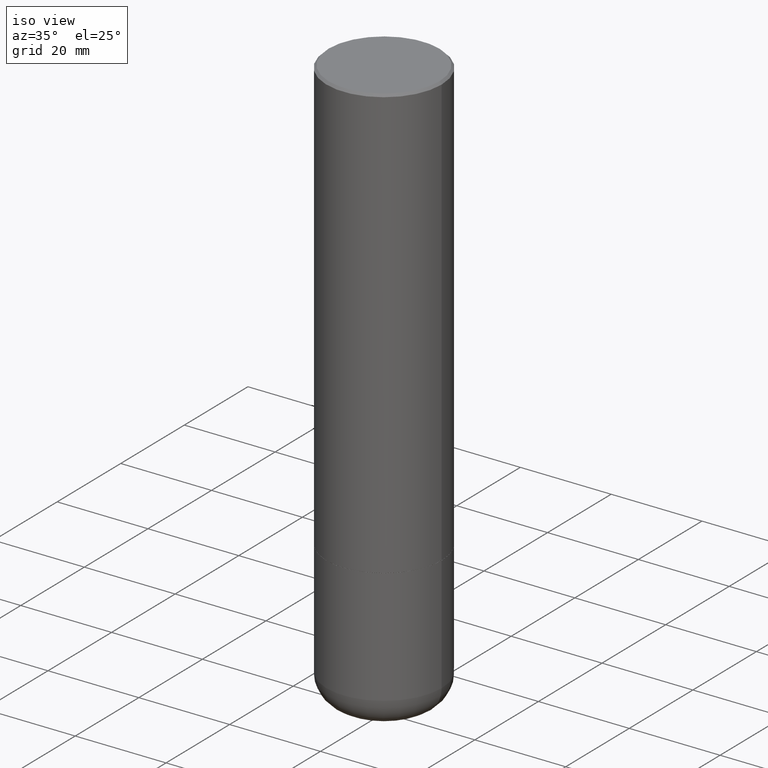
[diagram: clean part render]
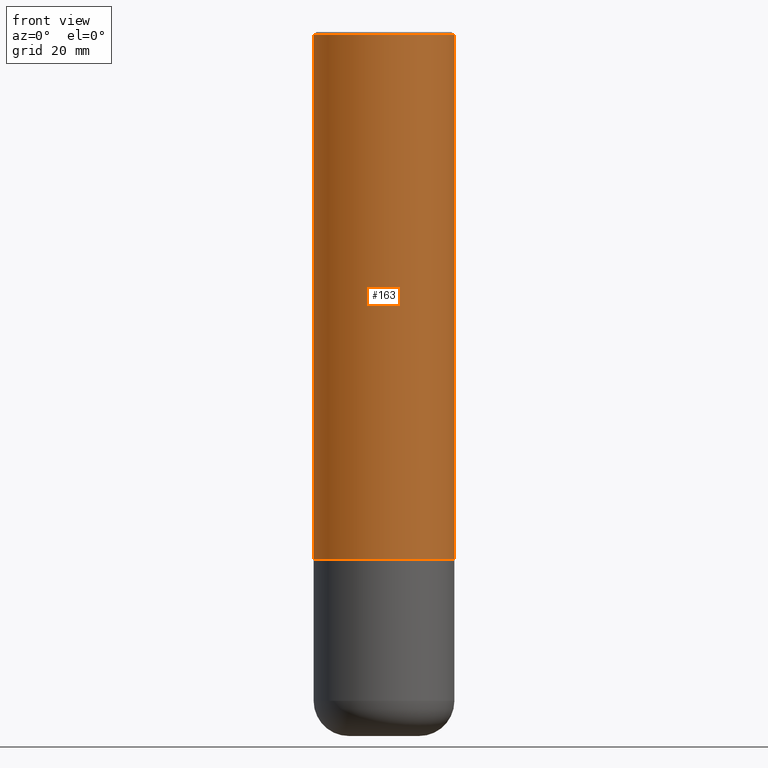
[diagram: tour spotlight — one face highlighted and labeled with its STEP entity id]
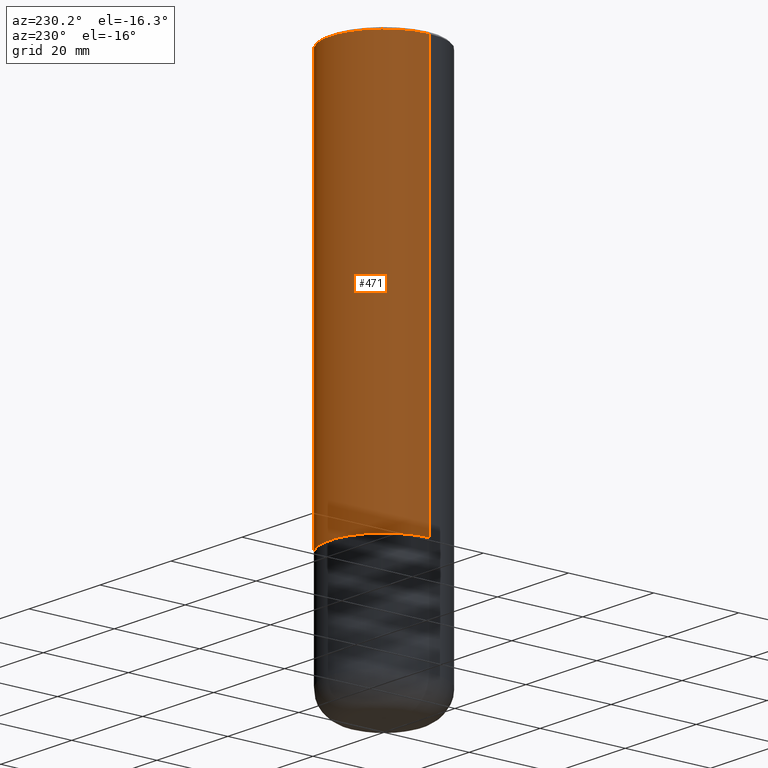
[diagram: tour spotlight — one face highlighted and labeled with its STEP entity id]
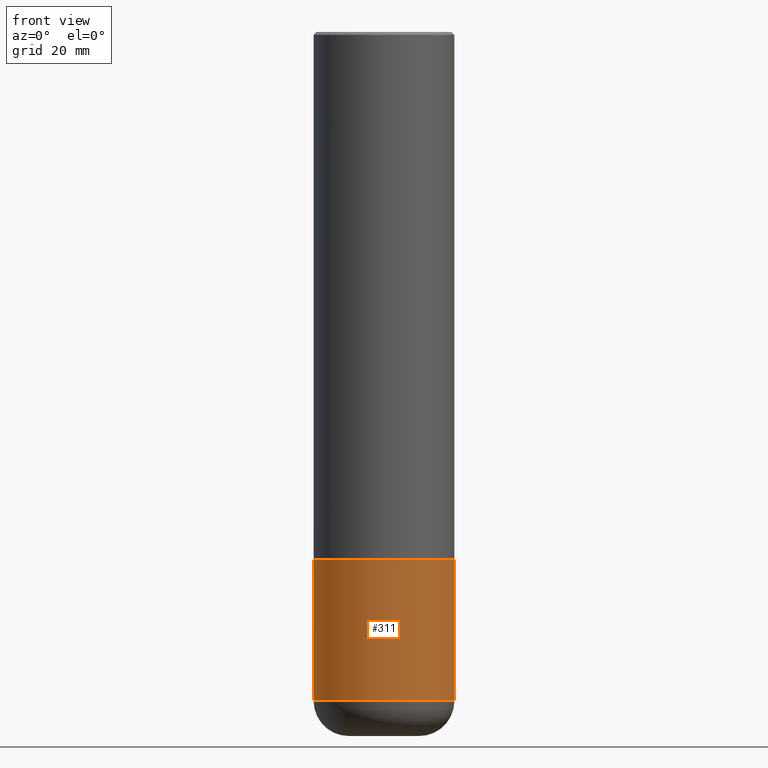
[diagram: tour spotlight — one face highlighted and labeled with its STEP entity id]
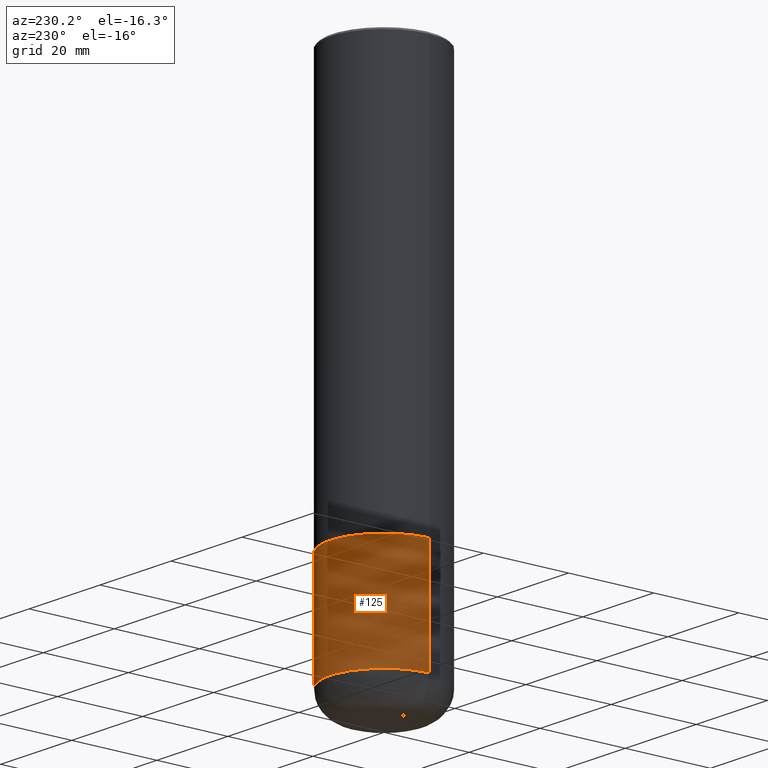
[diagram: tour spotlight — one face highlighted and labeled with its STEP entity id]
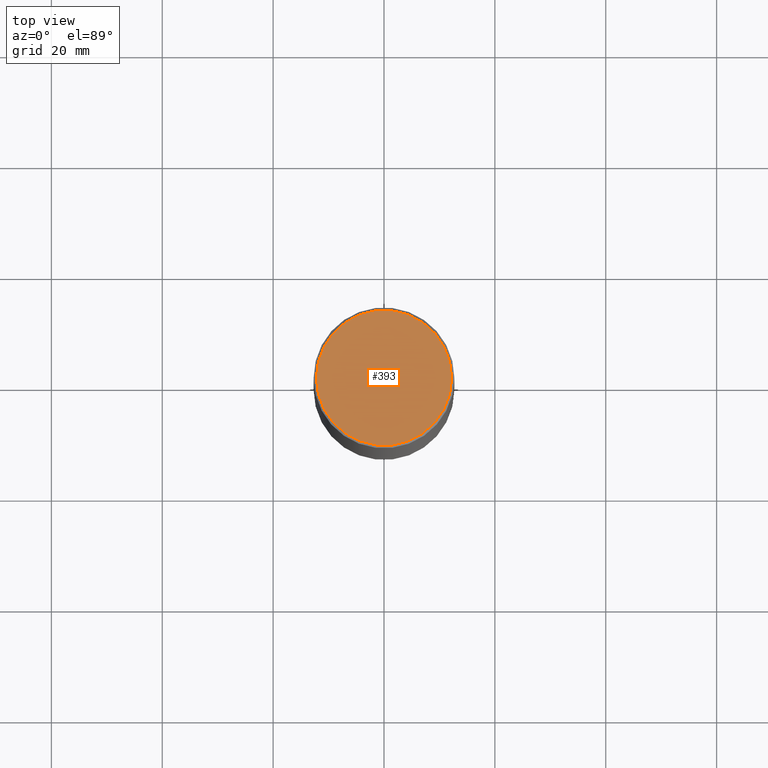
[diagram: tour spotlight — one face highlighted and labeled with its STEP entity id]
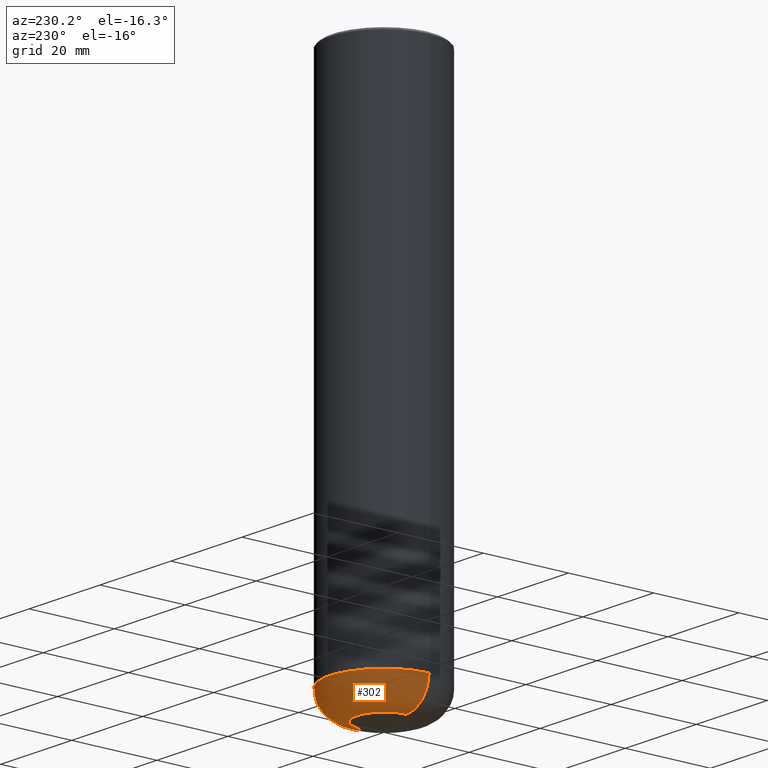
[diagram: tour spotlight — one face highlighted and labeled with its STEP entity id]
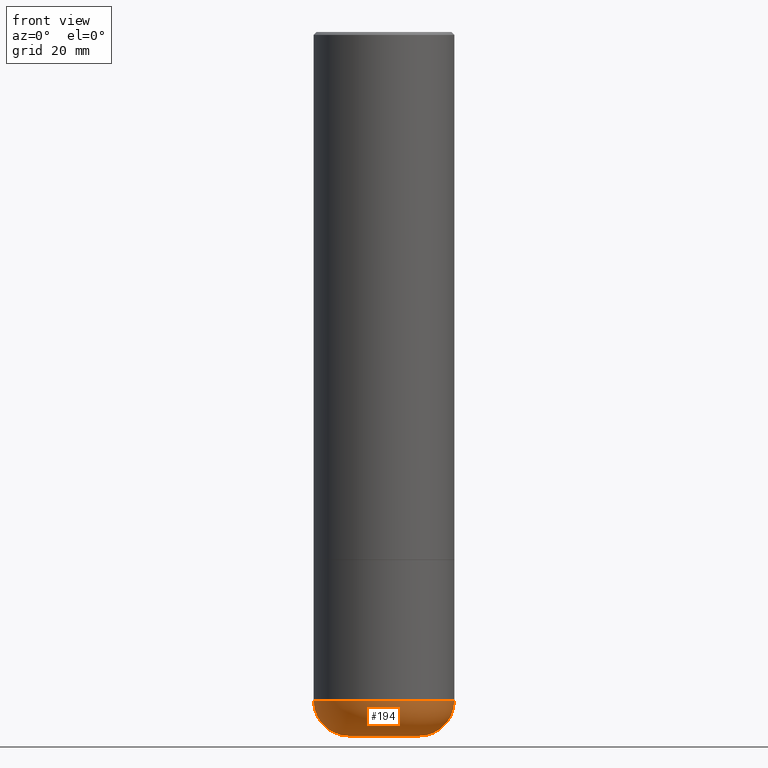
[diagram: tour spotlight — one face highlighted and labeled with its STEP entity id]
A machine part: a face-by-face anatomy tour. The part has 17 B-rep faces; the first image is the clean iso view, then the 7 largest visible faces are spotlighted one at a time (largest first), each with its STEP entity span.

Face 1 — front view, entity #163. In plain terms, the highlighted cylindrical surface (partial cylindrical patch) has radius 12.7 mm, axis along (-0, 0, 1).
Definition (entity closure, byte-faithful):
#12 = DIRECTION ( 'NONE',  ( 1.000000000000000000, -6.982962677686266711E-15, 0.000000000000000000 ) ) ;
#22 = AXIS2_PLACEMENT_3D ( 'NONE', #228, #447, #261 ) ;
#28 = CARTESIAN_POINT ( 'NONE',  ( -0.4999999999999990563, 3.421651712066263352E-15, -0.02000000000000018777 ) ) ;
#52 = CIRCLE ( 'NONE', #178, 0.4999999999999990563 ) ;
#57 = VERTEX_POINT ( 'NONE', #466 ) ;
#65 = EDGE_CURVE ( 'NONE', #491, #279, #52, .T. ) ;
#80 = ORIENTED_EDGE ( 'NONE', *, *, #86, .T. ) ;
#86 = EDGE_CURVE ( 'NONE', #225, #57, #151, .T. ) ;
#107 = EDGE_LOOP ( 'NONE', ( #258, #80, #219, #405 ) ) ;
#126 = DIRECTION ( 'NONE',  ( 1.000000000000000000, -6.982962677686267499E-15, 4.876176775795935793E-29 ) ) ;
#128 = CARTESIAN_POINT ( 'NONE',  ( -0.4999999999999992228, 3.552713678800495407E-15, -2.459467545127449248E-29 ) ) ;
#151 = CIRCLE ( 'NONE', #22, 0.4999999999999994449 ) ;
#163 = ADVANCED_FACE ( 'NONE', ( #164 ), #419, .T. ) ;
#164 = FACE_OUTER_BOUND ( 'NONE', #107, .T. ) ;
#178 = AXIS2_PLACEMENT_3D ( 'NONE', #472, #287, #12 ) ;
#206 = EDGE_CURVE ( 'NONE', #57, #279, #458, .T. ) ;
#207 = DIRECTION ( 'NONE',  ( -2.445468806185136877E-29, 3.491481338843145188E-15, 1.000000000000000000 ) ) ;
#219 = ORIENTED_EDGE ( 'NONE', *, *, #206, .T. ) ;
#225 = VERTEX_POINT ( 'NONE', #272 ) ;
#228 = CARTESIAN_POINT ( 'NONE',  ( 9.168062554388078877E-29, -1.308956353932295441E-14, -3.749000000000000554 ) ) ;
#229 = DIRECTION ( 'NONE',  ( -2.445468806185136877E-29, 3.491481338843145188E-15, 1.000000000000000000 ) ) ;
#258 = ORIENTED_EDGE ( 'NONE', *, *, #259, .F. ) ;
#259 = EDGE_CURVE ( 'NONE', #225, #491, #453, .T. ) ;
#261 = DIRECTION ( 'NONE',  ( 1.000000000000000000, -6.982962677686266711E-15, 0.000000000000000000 ) ) ;
#272 = CARTESIAN_POINT ( 'NONE',  ( -0.4999999999999994449, -3.026982904249409106E-15, -3.749000000000000554 ) ) ;
#279 = VERTEX_POINT ( 'NONE', #411 ) ;
#283 = VECTOR ( 'NONE', #229, 39.37007874015748143 ) ;
#287 = DIRECTION ( 'NONE',  ( -2.445468806185136597E-29, 3.491481338843145583E-15, 1.000000000000000000 ) ) ;
#323 = AXIS2_PLACEMENT_3D ( 'NONE', #461, #376, #126 ) ;
#366 = VECTOR ( 'NONE', #207, 39.37007874015748143 ) ;
#376 = DIRECTION ( 'NONE',  ( -2.445468806185136597E-29, 3.491481338843145583E-15, 1.000000000000000000 ) ) ;
#405 = ORIENTED_EDGE ( 'NONE', *, *, #65, .F. ) ;
#411 = CARTESIAN_POINT ( 'NONE',  ( 0.4999999999999990563, -3.500078625662622374E-15, -0.02000000000000018777 ) ) ;
#414 = CARTESIAN_POINT ( 'NONE',  ( 0.4999999999999992228, -3.491481338843128228E-15, 2.438088387897963973E-29 ) ) ;
#419 = CYLINDRICAL_SURFACE ( 'NONE', #323, 0.4999999999999992228 ) ;
#447 = DIRECTION ( 'NONE',  ( -2.445468806185136597E-29, 3.491481338843145583E-15, 1.000000000000000000 ) ) ;
#453 = LINE ( 'NONE', #128, #283 ) ;
#458 = LINE ( 'NONE', #414, #366 ) ;
#461 = CARTESIAN_POINT ( 'NONE',  ( 0.000000000000000000, 0.000000000000000000, 0.000000000000000000 ) ) ;
#466 = CARTESIAN_POINT ( 'NONE',  ( 0.4999999999999994449, -1.658104487816608303E-14, -3.749000000000000554 ) ) ;
#472 = CARTESIAN_POINT ( 'NONE',  ( 4.890937612370318701E-31, -6.982962677686356937E-17, -0.02000000000000018777 ) ) ;
#491 = VERTEX_POINT ( 'NONE', #28 ) ;

Face 2 — auxiliary view, entity #471. In plain terms, the highlighted cylindrical surface (partial cylindrical patch) has radius 12.7 mm, axis along (-0, 0, 1).
Definition (entity closure, byte-faithful):
#2 = EDGE_LOOP ( 'NONE', ( #321, #64, #292, #332 ) ) ;
#13 = AXIS2_PLACEMENT_3D ( 'NONE', #240, #308, #492 ) ;
#28 = CARTESIAN_POINT ( 'NONE',  ( -0.4999999999999990563, 3.421651712066263352E-15, -0.02000000000000018777 ) ) ;
#36 = DIRECTION ( 'NONE',  ( 1.000000000000000000, -6.982962677686267499E-15, 4.876176775795935793E-29 ) ) ;
#43 = AXIS2_PLACEMENT_3D ( 'NONE', #469, #428, #288 ) ;
#57 = VERTEX_POINT ( 'NONE', #466 ) ;
#64 = ORIENTED_EDGE ( 'NONE', *, *, #259, .T. ) ;
#128 = CARTESIAN_POINT ( 'NONE',  ( -0.4999999999999992228, 3.552713678800495407E-15, -2.459467545127449248E-29 ) ) ;
#162 = CIRCLE ( 'NONE', #43, 0.4999999999999994449 ) ;
#172 = CIRCLE ( 'NONE', #13, 0.4999999999999990563 ) ;
#206 = EDGE_CURVE ( 'NONE', #57, #279, #458, .T. ) ;
#207 = DIRECTION ( 'NONE',  ( -2.445468806185136877E-29, 3.491481338843145188E-15, 1.000000000000000000 ) ) ;
#211 = EDGE_CURVE ( 'NONE', #279, #491, #172, .T. ) ;
#225 = VERTEX_POINT ( 'NONE', #272 ) ;
#229 = DIRECTION ( 'NONE',  ( -2.445468806185136877E-29, 3.491481338843145188E-15, 1.000000000000000000 ) ) ;
#240 = CARTESIAN_POINT ( 'NONE',  ( 4.890937612370318701E-31, -6.982962677686356937E-17, -0.02000000000000018777 ) ) ;
#259 = EDGE_CURVE ( 'NONE', #225, #491, #453, .T. ) ;
#269 = DIRECTION ( 'NONE',  ( -2.445468806185136597E-29, 3.491481338843145583E-15, 1.000000000000000000 ) ) ;
#272 = CARTESIAN_POINT ( 'NONE',  ( -0.4999999999999994449, -3.026982904249409106E-15, -3.749000000000000554 ) ) ;
#279 = VERTEX_POINT ( 'NONE', #411 ) ;
#283 = VECTOR ( 'NONE', #229, 39.37007874015748143 ) ;
#288 = DIRECTION ( 'NONE',  ( 1.000000000000000000, -6.982962677686266711E-15, 0.000000000000000000 ) ) ;
#292 = ORIENTED_EDGE ( 'NONE', *, *, #211, .F. ) ;
#308 = DIRECTION ( 'NONE',  ( -2.445468806185136597E-29, 3.491481338843145583E-15, 1.000000000000000000 ) ) ;
#321 = ORIENTED_EDGE ( 'NONE', *, *, #402, .T. ) ;
#332 = ORIENTED_EDGE ( 'NONE', *, *, #206, .F. ) ;
#347 = AXIS2_PLACEMENT_3D ( 'NONE', #348, #269, #36 ) ;
#348 = CARTESIAN_POINT ( 'NONE',  ( 0.000000000000000000, 0.000000000000000000, 0.000000000000000000 ) ) ;
#366 = VECTOR ( 'NONE', #207, 39.37007874015748143 ) ;
#402 = EDGE_CURVE ( 'NONE', #57, #225, #162, .T. ) ;
#411 = CARTESIAN_POINT ( 'NONE',  ( 0.4999999999999990563, -3.500078625662622374E-15, -0.02000000000000018777 ) ) ;
#414 = CARTESIAN_POINT ( 'NONE',  ( 0.4999999999999992228, -3.491481338843128228E-15, 2.438088387897963973E-29 ) ) ;
#416 = CYLINDRICAL_SURFACE ( 'NONE', #347, 0.4999999999999992228 ) ;
#428 = DIRECTION ( 'NONE',  ( -2.445468806185136597E-29, 3.491481338843145583E-15, 1.000000000000000000 ) ) ;
#453 = LINE ( 'NONE', #128, #283 ) ;
#458 = LINE ( 'NONE', #414, #366 ) ;
#466 = CARTESIAN_POINT ( 'NONE',  ( 0.4999999999999994449, -1.658104487816608303E-14, -3.749000000000000554 ) ) ;
#469 = CARTESIAN_POINT ( 'NONE',  ( 9.168062554388078877E-29, -1.308956353932295441E-14, -3.749000000000000554 ) ) ;
#471 = ADVANCED_FACE ( 'NONE', ( #488 ), #416, .T. ) ;
#488 = FACE_OUTER_BOUND ( 'NONE', #2, .T. ) ;
#491 = VERTEX_POINT ( 'NONE', #28 ) ;
#492 = DIRECTION ( 'NONE',  ( 1.000000000000000000, -6.982962677686266711E-15, 0.000000000000000000 ) ) ;

Face 3 — front view, entity #311. In plain terms, the highlighted cylindrical surface (partial cylindrical patch) has radius 12.7 mm, axis along (-0, 0, 1).
Definition (entity closure, byte-faithful):
#1 = DIRECTION ( 'NONE',  ( -2.445468806185136597E-29, 3.491481338843145583E-15, 1.000000000000000000 ) ) ;
#11 = EDGE_CURVE ( 'NONE', #255, #247, #21, .T. ) ;
#20 = VECTOR ( 'NONE', #231, 39.37007874015748143 ) ;
#21 = CIRCLE ( 'NONE', #327, 0.4999999999999994449 ) ;
#37 = CARTESIAN_POINT ( 'NONE',  ( -0.4999999999999999445, -1.128609862939673003E-14, -4.750009519233957533 ) ) ;
#40 = CARTESIAN_POINT ( 'NONE',  ( 0.5000000000000000000, -2.007605093457579787E-14, -4.750009519233957533 ) ) ;
#42 = CARTESIAN_POINT ( 'NONE',  ( 1.161600010836909978E-28, -1.658456959573266451E-14, -4.750009519233957533 ) ) ;
#50 = LINE ( 'NONE', #116, #20 ) ;
#73 = CARTESIAN_POINT ( 'NONE',  ( 0.4999999999999997224, -3.491481338843131383E-15, 2.438088387897966495E-29 ) ) ;
#79 = FACE_OUTER_BOUND ( 'NONE', #139, .T. ) ;
#87 = DIRECTION ( 'NONE',  ( 1.000000000000000000, -6.982962677686266711E-15, 0.000000000000000000 ) ) ;
#92 = CARTESIAN_POINT ( 'NONE',  ( 0.000000000000000000, 0.000000000000000000, 0.000000000000000000 ) ) ;
#99 = DIRECTION ( 'NONE',  ( 1.000000000000000000, -6.982962677686266711E-15, 0.000000000000000000 ) ) ;
#113 = DIRECTION ( 'NONE',  ( -2.445468806185136877E-29, 3.491481338843145188E-15, 1.000000000000000000 ) ) ;
#116 = CARTESIAN_POINT ( 'NONE',  ( -0.4999999999999997224, 3.552713678800498957E-15, -2.459467545127451490E-29 ) ) ;
#139 = EDGE_LOOP ( 'NONE', ( #299, #295, #142, #328 ) ) ;
#142 = ORIENTED_EDGE ( 'NONE', *, *, #253, .T. ) ;
#155 = CARTESIAN_POINT ( 'NONE',  ( -0.4999999999999994449, -1.128609862939673161E-14, -3.750000000000000000 ) ) ;
#166 = DIRECTION ( 'NONE',  ( -2.445468806185136597E-29, 3.491481338843145583E-15, 1.000000000000000000 ) ) ;
#177 = EDGE_CURVE ( 'NONE', #289, #255, #50, .T. ) ;
#231 = DIRECTION ( 'NONE',  ( -2.445468806185136877E-29, 3.491481338843145188E-15, 1.000000000000000000 ) ) ;
#237 = AXIS2_PLACEMENT_3D ( 'NONE', #42, #166, #87 ) ;
#247 = VERTEX_POINT ( 'NONE', #389 ) ;
#252 = AXIS2_PLACEMENT_3D ( 'NONE', #92, #1, #354 ) ;
#253 = EDGE_CURVE ( 'NONE', #439, #247, #275, .T. ) ;
#255 = VERTEX_POINT ( 'NONE', #155 ) ;
#275 = LINE ( 'NONE', #73, #481 ) ;
#289 = VERTEX_POINT ( 'NONE', #37 ) ;
#295 = ORIENTED_EDGE ( 'NONE', *, *, #382, .T. ) ;
#298 = CYLINDRICAL_SURFACE ( 'NONE', #252, 0.4999999999999997224 ) ;
#299 = ORIENTED_EDGE ( 'NONE', *, *, #177, .F. ) ;
#311 = ADVANCED_FACE ( 'NONE', ( #79 ), #298, .T. ) ;
#327 = AXIS2_PLACEMENT_3D ( 'NONE', #390, #464, #99 ) ;
#328 = ORIENTED_EDGE ( 'NONE', *, *, #11, .F. ) ;
#354 = DIRECTION ( 'NONE',  ( 1.000000000000000000, -6.982962677686266711E-15, 4.876176775795935793E-29 ) ) ;
#382 = EDGE_CURVE ( 'NONE', #289, #439, #425, .T. ) ;
#389 = CARTESIAN_POINT ( 'NONE',  ( 0.4999999999999994449, -1.658453635950492761E-14, -3.750000000000000000 ) ) ;
#390 = CARTESIAN_POINT ( 'NONE',  ( 9.170508023194262238E-29, -1.309305502066179741E-14, -3.750000000000000000 ) ) ;
#425 = CIRCLE ( 'NONE', #237, 0.5000000000000000000 ) ;
#439 = VERTEX_POINT ( 'NONE', #40 ) ;
#464 = DIRECTION ( 'NONE',  ( -2.445468806185136597E-29, 3.491481338843145583E-15, 1.000000000000000000 ) ) ;
#481 = VECTOR ( 'NONE', #113, 39.37007874015748143 ) ;

Face 4 — auxiliary view, entity #125. In plain terms, the highlighted cylindrical surface (partial cylindrical patch) has radius 12.7 mm, axis along (-0, 0, 1).
Definition (entity closure, byte-faithful):
#20 = VECTOR ( 'NONE', #231, 39.37007874015748143 ) ;
#26 = ORIENTED_EDGE ( 'NONE', *, *, #177, .T. ) ;
#35 = DIRECTION ( 'NONE',  ( -2.445468806185136597E-29, 3.491481338843145583E-15, 1.000000000000000000 ) ) ;
#37 = CARTESIAN_POINT ( 'NONE',  ( -0.4999999999999999445, -1.128609862939673003E-14, -4.750009519233957533 ) ) ;
#40 = CARTESIAN_POINT ( 'NONE',  ( 0.5000000000000000000, -2.007605093457579787E-14, -4.750009519233957533 ) ) ;
#50 = LINE ( 'NONE', #116, #20 ) ;
#73 = CARTESIAN_POINT ( 'NONE',  ( 0.4999999999999997224, -3.491481338843131383E-15, 2.438088387897966495E-29 ) ) ;
#82 = CYLINDRICAL_SURFACE ( 'NONE', #358, 0.4999999999999997224 ) ;
#98 = ORIENTED_EDGE ( 'NONE', *, *, #180, .T. ) ;
#113 = DIRECTION ( 'NONE',  ( -2.445468806185136877E-29, 3.491481338843145188E-15, 1.000000000000000000 ) ) ;
#116 = CARTESIAN_POINT ( 'NONE',  ( -0.4999999999999997224, 3.552713678800498957E-15, -2.459467545127451490E-29 ) ) ;
#125 = ADVANCED_FACE ( 'NONE', ( #193 ), #82, .T. ) ;
#127 = DIRECTION ( 'NONE',  ( 1.000000000000000000, -6.982962677686266711E-15, 0.000000000000000000 ) ) ;
#134 = CIRCLE ( 'NONE', #436, 0.5000000000000000000 ) ;
#137 = CARTESIAN_POINT ( 'NONE',  ( 1.161600010836909978E-28, -1.658456959573266451E-14, -4.750009519233957533 ) ) ;
#141 = AXIS2_PLACEMENT_3D ( 'NONE', #455, #420, #127 ) ;
#155 = CARTESIAN_POINT ( 'NONE',  ( -0.4999999999999994449, -1.128609862939673161E-14, -3.750000000000000000 ) ) ;
#157 = DIRECTION ( 'NONE',  ( -2.445468806185136597E-29, 3.491481338843145583E-15, 1.000000000000000000 ) ) ;
#159 = EDGE_LOOP ( 'NONE', ( #98, #26, #399, #435 ) ) ;
#177 = EDGE_CURVE ( 'NONE', #289, #255, #50, .T. ) ;
#180 = EDGE_CURVE ( 'NONE', #439, #289, #134, .T. ) ;
#193 = FACE_OUTER_BOUND ( 'NONE', #159, .T. ) ;
#231 = DIRECTION ( 'NONE',  ( -2.445468806185136877E-29, 3.491481338843145188E-15, 1.000000000000000000 ) ) ;
#247 = VERTEX_POINT ( 'NONE', #389 ) ;
#253 = EDGE_CURVE ( 'NONE', #439, #247, #275, .T. ) ;
#255 = VERTEX_POINT ( 'NONE', #155 ) ;
#275 = LINE ( 'NONE', #73, #481 ) ;
#278 = DIRECTION ( 'NONE',  ( 1.000000000000000000, -6.982962677686266711E-15, 0.000000000000000000 ) ) ;
#289 = VERTEX_POINT ( 'NONE', #37 ) ;
#317 = CIRCLE ( 'NONE', #141, 0.4999999999999994449 ) ;
#358 = AXIS2_PLACEMENT_3D ( 'NONE', #454, #157, #427 ) ;
#389 = CARTESIAN_POINT ( 'NONE',  ( 0.4999999999999994449, -1.658453635950492761E-14, -3.750000000000000000 ) ) ;
#399 = ORIENTED_EDGE ( 'NONE', *, *, #480, .F. ) ;
#420 = DIRECTION ( 'NONE',  ( -2.445468806185136597E-29, 3.491481338843145583E-15, 1.000000000000000000 ) ) ;
#427 = DIRECTION ( 'NONE',  ( 1.000000000000000000, -6.982962677686266711E-15, 4.876176775795935793E-29 ) ) ;
#435 = ORIENTED_EDGE ( 'NONE', *, *, #253, .F. ) ;
#436 = AXIS2_PLACEMENT_3D ( 'NONE', #137, #35, #278 ) ;
#439 = VERTEX_POINT ( 'NONE', #40 ) ;
#454 = CARTESIAN_POINT ( 'NONE',  ( 0.000000000000000000, 0.000000000000000000, 0.000000000000000000 ) ) ;
#455 = CARTESIAN_POINT ( 'NONE',  ( 9.170508023194262238E-29, -1.309305502066179741E-14, -3.750000000000000000 ) ) ;
#480 = EDGE_CURVE ( 'NONE', #247, #255, #317, .T. ) ;
#481 = VECTOR ( 'NONE', #113, 39.37007874015748143 ) ;

Face 5 — top view, entity #393. In plain terms, the highlighted planar face has unit normal (0, -0, -1).
Definition (entity closure, byte-faithful):
#8 = CARTESIAN_POINT ( 'NONE',  ( -0.4799999999999989275, 3.386736898677831703E-15, 1.280553747027767124E-17 ) ) ;
#30 = AXIS2_PLACEMENT_3D ( 'NONE', #307, #204, #388 ) ;
#49 = CARTESIAN_POINT ( 'NONE',  ( 3.351822085289400054E-15, 0.4799999999999989275, -1.669508273909555500E-15 ) ) ;
#75 = AXIS2_PLACEMENT_3D ( 'NONE', #49, #448, #236 ) ;
#89 = AXIS2_PLACEMENT_3D ( 'NONE', #306, #198, #444 ) ;
#192 = VERTEX_POINT ( 'NONE', #380 ) ;
#198 = DIRECTION ( 'NONE',  ( -2.445468806185136597E-29, 3.491481338843145583E-15, 1.000000000000000000 ) ) ;
#204 = DIRECTION ( 'NONE',  ( -2.445468806185136597E-29, 3.491481338843145583E-15, 1.000000000000000000 ) ) ;
#236 = DIRECTION ( 'NONE',  ( -1.000000000000000000, 6.982962677686265922E-15, -4.876176775795935793E-29 ) ) ;
#263 = CIRCLE ( 'NONE', #89, 0.4799999999999989275 ) ;
#301 = PLANE ( 'NONE',  #75 ) ;
#303 = VERTEX_POINT ( 'NONE', #8 ) ;
#306 = CARTESIAN_POINT ( 'NONE',  ( -3.131554243005659264E-46, 4.471029511141341874E-32, 1.280553747030123384E-17 ) ) ;
#307 = CARTESIAN_POINT ( 'NONE',  ( -3.131554243005659264E-46, 4.471029511141341874E-32, 1.280553747030123384E-17 ) ) ;
#326 = EDGE_CURVE ( 'NONE', #303, #192, #460, .T. ) ;
#333 = ORIENTED_EDGE ( 'NONE', *, *, #465, .T. ) ;
#368 = EDGE_LOOP ( 'NONE', ( #442, #333 ) ) ;
#380 = CARTESIAN_POINT ( 'NONE',  ( 0.4799999999999989275, -3.396558832296475394E-15, 1.280553747032483033E-17 ) ) ;
#388 = DIRECTION ( 'NONE',  ( 1.000000000000000000, -6.982962677686266711E-15, 4.876036955247140054E-29 ) ) ;
#393 = ADVANCED_FACE ( 'NONE', ( #404 ), #301, .F. ) ;
#404 = FACE_OUTER_BOUND ( 'NONE', #368, .T. ) ;
#442 = ORIENTED_EDGE ( 'NONE', *, *, #326, .T. ) ;
#444 = DIRECTION ( 'NONE',  ( 1.000000000000000000, -6.982962677686266711E-15, 4.876036955247140054E-29 ) ) ;
#448 = DIRECTION ( 'NONE',  ( 2.438088387897960049E-29, -3.491481338843145188E-15, -1.000000000000000000 ) ) ;
#460 = CIRCLE ( 'NONE', #30, 0.4799999999999989275 ) ;
#465 = EDGE_CURVE ( 'NONE', #192, #303, #263, .T. ) ;

Face 6 — auxiliary view, entity #302. In plain terms, the highlighted toroidal blend (fillet) surface has major radius 6.35 mm and minor (blend) radius 6.35 mm.
Definition (entity closure, byte-faithful):
#17 = DIRECTION ( 'NONE',  ( -6.982962677686266711E-15, -1.000000000000000000, 3.491481338843145583E-15 ) ) ;
#18 = EDGE_CURVE ( 'NONE', #361, #439, #96, .T. ) ;
#29 = AXIS2_PLACEMENT_3D ( 'NONE', #174, #17, #432 ) ;
#35 = DIRECTION ( 'NONE',  ( -2.445468806185136597E-29, 3.491481338843145583E-15, 1.000000000000000000 ) ) ;
#37 = CARTESIAN_POINT ( 'NONE',  ( -0.4999999999999999445, -1.128609862939673003E-14, -4.750009519233957533 ) ) ;
#40 = CARTESIAN_POINT ( 'NONE',  ( 0.5000000000000000000, -2.007605093457579787E-14, -4.750009519233957533 ) ) ;
#62 = EDGE_CURVE ( 'NONE', #245, #289, #117, .T. ) ;
#95 = ORIENTED_EDGE ( 'NONE', *, *, #62, .T. ) ;
#96 = CIRCLE ( 'NONE', #29, 0.2499999999999998612 ) ;
#100 = DIRECTION ( 'NONE',  ( 7.105427357601001859E-15, 1.000000000000000000, -3.491481338843145583E-15 ) ) ;
#103 = AXIS2_PLACEMENT_3D ( 'NONE', #344, #383, #349 ) ;
#111 = ORIENTED_EDGE ( 'NONE', *, *, #180, .F. ) ;
#117 = CIRCLE ( 'NONE', #365, 0.2499999999999998612 ) ;
#134 = CIRCLE ( 'NONE', #436, 0.5000000000000000000 ) ;
#137 = CARTESIAN_POINT ( 'NONE',  ( 1.161600010836909978E-28, -1.658456959573266451E-14, -4.750009519233957533 ) ) ;
#146 = AXIS2_PLACEMENT_3D ( 'NONE', #224, #373, #161 ) ;
#161 = DIRECTION ( 'NONE',  ( 1.000000000000000000, -6.982962677686273021E-15, 0.000000000000000000 ) ) ;
#174 = CARTESIAN_POINT ( 'NONE',  ( 0.2500000000000002776, -1.833031026515423119E-14, -4.750009519233957533 ) ) ;
#180 = EDGE_CURVE ( 'NONE', #439, #289, #134, .T. ) ;
#181 = ORIENTED_EDGE ( 'NONE', *, *, #273, .T. ) ;
#183 = CIRCLE ( 'NONE', #146, 0.2478183661254080850 ) ;
#195 = FACE_OUTER_BOUND ( 'NONE', #446, .T. ) ;
#210 = CARTESIAN_POINT ( 'NONE',  ( -0.2500000000000002776, -1.480821275633241089E-14, -4.750009519233957533 ) ) ;
#212 = ORIENTED_EDGE ( 'NONE', *, *, #18, .F. ) ;
#224 = CARTESIAN_POINT ( 'NONE',  ( 1.222734403092568523E-28, -1.745740669421572989E-14, -5.000000000000000000 ) ) ;
#232 = CARTESIAN_POINT ( 'NONE',  ( 0.2478183661254080850, -1.918791309571464730E-14, -5.000000000000000000 ) ) ;
#242 = TOROIDAL_SURFACE ( 'NONE', #103, 0.2500000000000002776, 0.2499999999999998612 ) ;
#245 = VERTEX_POINT ( 'NONE', #424 ) ;
#273 = EDGE_CURVE ( 'NONE', #361, #245, #183, .T. ) ;
#278 = DIRECTION ( 'NONE',  ( 1.000000000000000000, -6.982962677686266711E-15, 0.000000000000000000 ) ) ;
#289 = VERTEX_POINT ( 'NONE', #37 ) ;
#302 = ADVANCED_FACE ( 'NONE', ( #195 ), #242, .T. ) ;
#344 = CARTESIAN_POINT ( 'NONE',  ( 1.161600010836909978E-28, -1.658456959573266451E-14, -4.750009519233957533 ) ) ;
#349 = DIRECTION ( 'NONE',  ( 1.000000000000000000, -6.982962677686265133E-15, 4.883557194083112340E-29 ) ) ;
#361 = VERTEX_POINT ( 'NONE', #232 ) ;
#365 = AXIS2_PLACEMENT_3D ( 'NONE', #210, #100, #463 ) ;
#373 = DIRECTION ( 'NONE',  ( -2.445468806185136597E-29, 3.491481338843145583E-15, 1.000000000000000000 ) ) ;
#383 = DIRECTION ( 'NONE',  ( -2.445468806185136597E-29, 3.491481338843145583E-15, 1.000000000000000000 ) ) ;
#424 = CARTESIAN_POINT ( 'NONE',  ( -0.2478183661254081127, -1.436420360638221795E-14, -5.000000000000000000 ) ) ;
#432 = DIRECTION ( 'NONE',  ( 1.000000000000000000, -6.982962677686266711E-15, 0.000000000000000000 ) ) ;
#436 = AXIS2_PLACEMENT_3D ( 'NONE', #137, #35, #278 ) ;
#439 = VERTEX_POINT ( 'NONE', #40 ) ;
#446 = EDGE_LOOP ( 'NONE', ( #181, #95, #111, #212 ) ) ;
#463 = DIRECTION ( 'NONE',  ( -1.000000000000000000, 7.105427357601000281E-15, 0.000000000000000000 ) ) ;

Face 7 — front view, entity #194. In plain terms, the highlighted toroidal blend (fillet) surface has major radius 6.35 mm and minor (blend) radius 6.35 mm.
Definition (entity closure, byte-faithful):
#4 = AXIS2_PLACEMENT_3D ( 'NONE', #77, #452, #122 ) ;
#7 = CARTESIAN_POINT ( 'NONE',  ( 1.222734403092568523E-28, -1.745740669421572989E-14, -5.000000000000000000 ) ) ;
#17 = DIRECTION ( 'NONE',  ( -6.982962677686266711E-15, -1.000000000000000000, 3.491481338843145583E-15 ) ) ;
#18 = EDGE_CURVE ( 'NONE', #361, #439, #96, .T. ) ;
#19 = ORIENTED_EDGE ( 'NONE', *, *, #62, .F. ) ;
#29 = AXIS2_PLACEMENT_3D ( 'NONE', #174, #17, #432 ) ;
#37 = CARTESIAN_POINT ( 'NONE',  ( -0.4999999999999999445, -1.128609862939673003E-14, -4.750009519233957533 ) ) ;
#40 = CARTESIAN_POINT ( 'NONE',  ( 0.5000000000000000000, -2.007605093457579787E-14, -4.750009519233957533 ) ) ;
#42 = CARTESIAN_POINT ( 'NONE',  ( 1.161600010836909978E-28, -1.658456959573266451E-14, -4.750009519233957533 ) ) ;
#59 = AXIS2_PLACEMENT_3D ( 'NONE', #7, #353, #165 ) ;
#62 = EDGE_CURVE ( 'NONE', #245, #289, #117, .T. ) ;
#77 = CARTESIAN_POINT ( 'NONE',  ( 1.161600010836909978E-28, -1.658456959573266451E-14, -4.750009519233957533 ) ) ;
#87 = DIRECTION ( 'NONE',  ( 1.000000000000000000, -6.982962677686266711E-15, 0.000000000000000000 ) ) ;
#96 = CIRCLE ( 'NONE', #29, 0.2499999999999998612 ) ;
#100 = DIRECTION ( 'NONE',  ( 7.105427357601001859E-15, 1.000000000000000000, -3.491481338843145583E-15 ) ) ;
#117 = CIRCLE ( 'NONE', #365, 0.2499999999999998612 ) ;
#122 = DIRECTION ( 'NONE',  ( 1.000000000000000000, -6.982962677686265133E-15, 4.883557194083112340E-29 ) ) ;
#150 = ORIENTED_EDGE ( 'NONE', *, *, #474, .T. ) ;
#152 = EDGE_LOOP ( 'NONE', ( #19, #150, #184, #340 ) ) ;
#165 = DIRECTION ( 'NONE',  ( 1.000000000000000000, -6.982962677686273021E-15, 0.000000000000000000 ) ) ;
#166 = DIRECTION ( 'NONE',  ( -2.445468806185136597E-29, 3.491481338843145583E-15, 1.000000000000000000 ) ) ;
#174 = CARTESIAN_POINT ( 'NONE',  ( 0.2500000000000002776, -1.833031026515423119E-14, -4.750009519233957533 ) ) ;
#184 = ORIENTED_EDGE ( 'NONE', *, *, #18, .T. ) ;
#194 = ADVANCED_FACE ( 'NONE', ( #234 ), #398, .T. ) ;
#210 = CARTESIAN_POINT ( 'NONE',  ( -0.2500000000000002776, -1.480821275633241089E-14, -4.750009519233957533 ) ) ;
#232 = CARTESIAN_POINT ( 'NONE',  ( 0.2478183661254080850, -1.918791309571464730E-14, -5.000000000000000000 ) ) ;
#234 = FACE_OUTER_BOUND ( 'NONE', #152, .T. ) ;
#237 = AXIS2_PLACEMENT_3D ( 'NONE', #42, #166, #87 ) ;
#245 = VERTEX_POINT ( 'NONE', #424 ) ;
#289 = VERTEX_POINT ( 'NONE', #37 ) ;
#340 = ORIENTED_EDGE ( 'NONE', *, *, #382, .F. ) ;
#353 = DIRECTION ( 'NONE',  ( -2.445468806185136597E-29, 3.491481338843145583E-15, 1.000000000000000000 ) ) ;
#361 = VERTEX_POINT ( 'NONE', #232 ) ;
#365 = AXIS2_PLACEMENT_3D ( 'NONE', #210, #100, #463 ) ;
#371 = CIRCLE ( 'NONE', #59, 0.2478183661254080850 ) ;
#382 = EDGE_CURVE ( 'NONE', #289, #439, #425, .T. ) ;
#398 = TOROIDAL_SURFACE ( 'NONE', #4, 0.2500000000000002776, 0.2499999999999998612 ) ;
#424 = CARTESIAN_POINT ( 'NONE',  ( -0.2478183661254081127, -1.436420360638221795E-14, -5.000000000000000000 ) ) ;
#425 = CIRCLE ( 'NONE', #237, 0.5000000000000000000 ) ;
#432 = DIRECTION ( 'NONE',  ( 1.000000000000000000, -6.982962677686266711E-15, 0.000000000000000000 ) ) ;
#439 = VERTEX_POINT ( 'NONE', #40 ) ;
#452 = DIRECTION ( 'NONE',  ( -2.445468806185136597E-29, 3.491481338843145583E-15, 1.000000000000000000 ) ) ;
#463 = DIRECTION ( 'NONE',  ( -1.000000000000000000, 7.105427357601000281E-15, 0.000000000000000000 ) ) ;
#474 = EDGE_CURVE ( 'NONE', #245, #361, #371, .T. ) ;